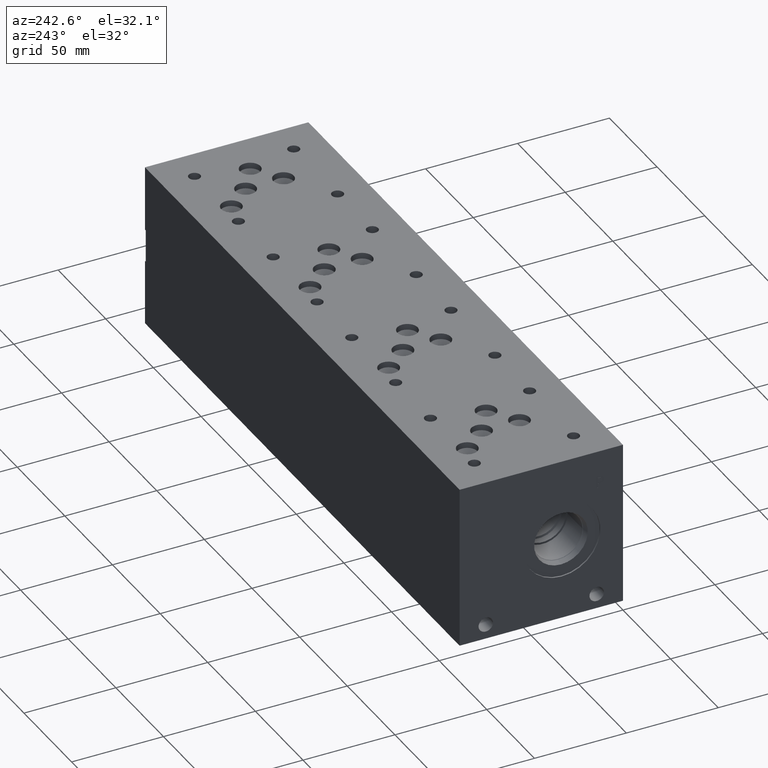
[diagram: clean part render]
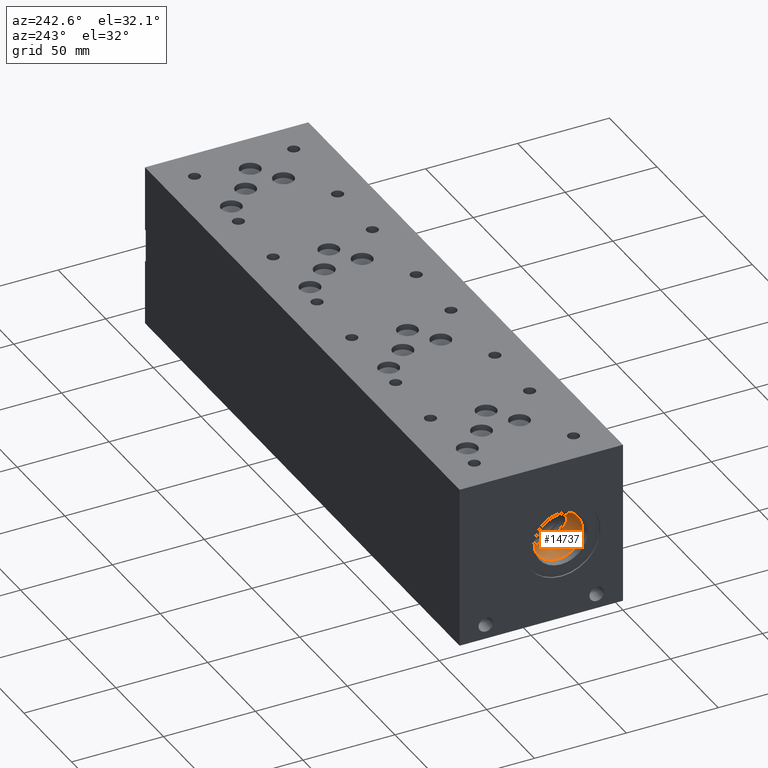
[diagram: same view with one face highlighted and labeled with its STEP entity id]
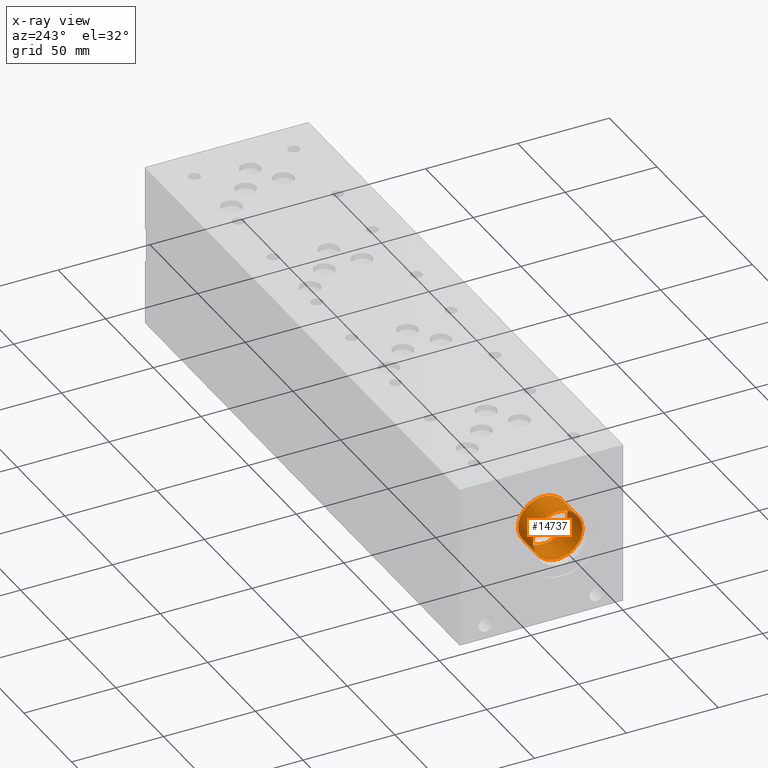
[diagram: x-ray of the same camera — body ghosted, the highlighted face saturated]
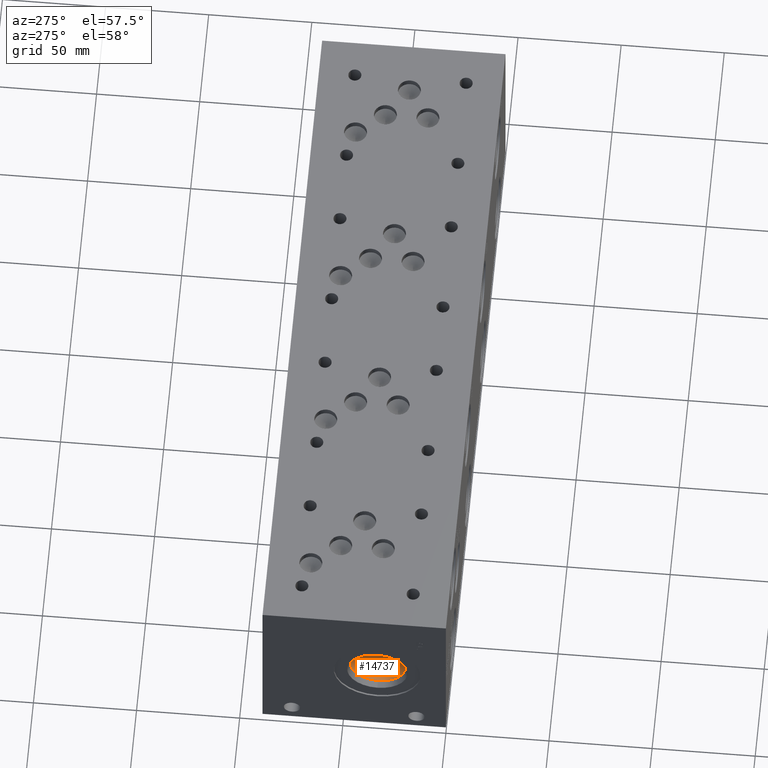
[diagram: same view with one face highlighted and labeled with its STEP entity id]
A machine part, auxiliary view. The second image highlights one B-rep face of the part: STEP entity #14737.
The next image is the same camera in x-ray: the body ghosted, the highlighted face saturated — about 0% of this face is hidden behind the body in this view.
A second angle (auxiliary view) of the same face is appended — the face is thin or edge-on in the first view.
In plain terms, the highlighted cylindrical surface (bore or boss wall) has radius 13.495 mm, axis along (-1, 0, 0).
Its self-contained STEP definition (entity closure, byte-faithful):
#25=CYLINDRICAL_SURFACE('',#15412,13.495);
#271=CIRCLE('',#15409,13.495);
#272=CIRCLE('',#15410,13.495);
#274=CIRCLE('',#15413,13.495);
#275=CIRCLE('',#15414,13.495);
#1869=FACE_OUTER_BOUND('',#2715,.T.);
#2715=EDGE_LOOP('',(#12161,#12162,#12163,#12164,#12165,#12166));
#4120=LINE('',#24827,#5416);
#5416=VECTOR('',#17995,13.495);
#6637=VERTEX_POINT('',#24817);
#6638=VERTEX_POINT('',#24818);
#6640=VERTEX_POINT('',#24824);
#6641=VERTEX_POINT('',#24825);
#8581=EDGE_CURVE('',#6637,#6638,#271,.T.);
#8582=EDGE_CURVE('',#6638,#6637,#272,.T.);
#8584=EDGE_CURVE('',#6640,#6641,#274,.T.);
#8585=EDGE_CURVE('',#6640,#6638,#4120,.T.);
#8586=EDGE_CURVE('',#6641,#6640,#275,.T.);
#12161=ORIENTED_EDGE('',*,*,#8584,.F.);
#12162=ORIENTED_EDGE('',*,*,#8585,.T.);
#12163=ORIENTED_EDGE('',*,*,#8581,.F.);
#12164=ORIENTED_EDGE('',*,*,#8582,.F.);
#12165=ORIENTED_EDGE('',*,*,#8585,.F.);
#12166=ORIENTED_EDGE('',*,*,#8586,.F.);
#14737=ADVANCED_FACE('',(#1869),#25,.F.);
#15409=AXIS2_PLACEMENT_3D('',#24819,#17985,#17986);
#15410=AXIS2_PLACEMENT_3D('',#24820,#17987,#17988);
#15412=AXIS2_PLACEMENT_3D('',#24823,#17991,#17992);
#15413=AXIS2_PLACEMENT_3D('',#24826,#17993,#17994);
#15414=AXIS2_PLACEMENT_3D('',#24828,#17996,#17997);
#17985=DIRECTION('center_axis',(-1.,0.,0.));
#17986=DIRECTION('ref_axis',(0.,1.,0.));
#17987=DIRECTION('center_axis',(-1.,0.,0.));
#17988=DIRECTION('ref_axis',(0.,1.,0.));
#17991=DIRECTION('center_axis',(-1.,0.,0.));
#17992=DIRECTION('ref_axis',(0.,1.,0.));
#17993=DIRECTION('center_axis',(1.,0.,0.));
#17994=DIRECTION('ref_axis',(0.,1.,0.));
#17995=DIRECTION('',(1.,0.,0.));
#17996=DIRECTION('center_axis',(1.,0.,0.));
#17997=DIRECTION('ref_axis',(0.,1.,0.));
#24817=CARTESIAN_POINT('',(19.8374,46.8198,44.45));
#24818=CARTESIAN_POINT('',(19.8374,19.8298,44.45));
#24819=CARTESIAN_POINT('Origin',(19.8374,33.3248,44.45));
#24820=CARTESIAN_POINT('Origin',(19.8374,33.3248,44.45));
#24823=CARTESIAN_POINT('Origin',(9.9187,33.3248,44.45));
#24824=CARTESIAN_POINT('',(4.285,19.8298,44.45));
#24825=CARTESIAN_POINT('',(4.285,33.3248,30.955));
#24826=CARTESIAN_POINT('Origin',(4.285,33.3248,44.45));
#24827=CARTESIAN_POINT('',(9.9187,19.8298,44.45));
#24828=CARTESIAN_POINT('Origin',(4.285,33.3248,44.45));